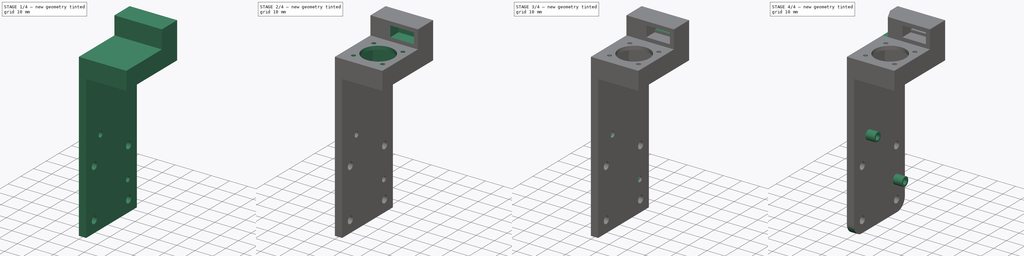
[diagram: build sequence overview — one tinted view per stage of 4, left to right]
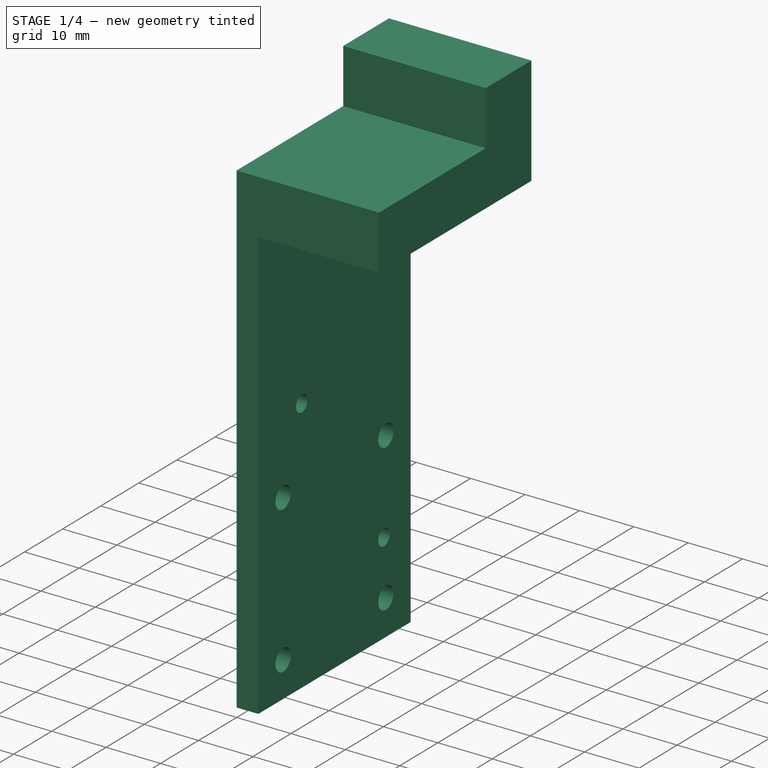
[diagram: stage 1 of 4 — iso view after this stage's code; geometry added in this stage tinted green]
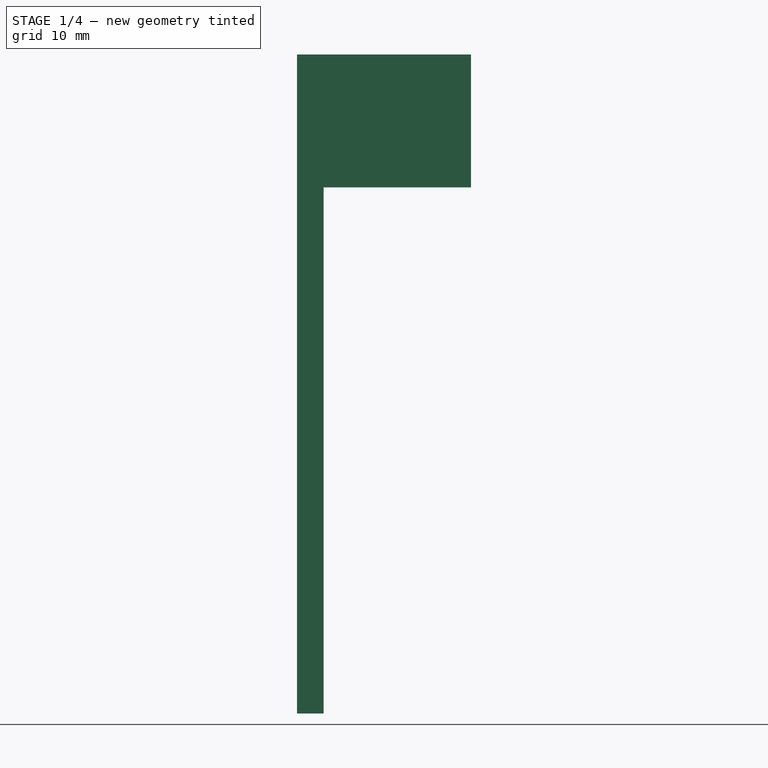
[diagram: stage 1 of 4 — front view after this stage's code; geometry added in this stage tinted green]
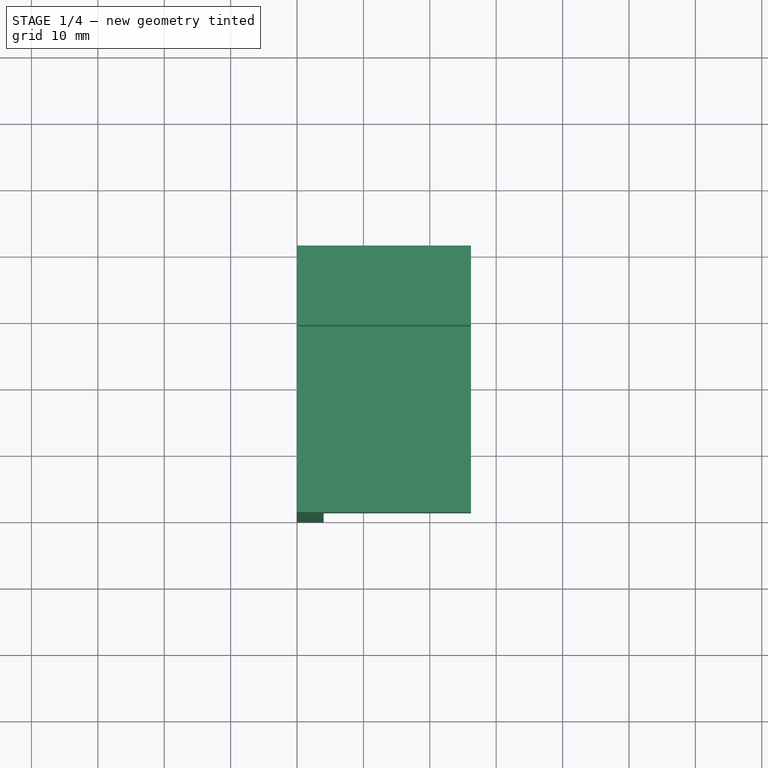
[diagram: stage 1 of 4 — top view after this stage's code; geometry added in this stage tinted green]
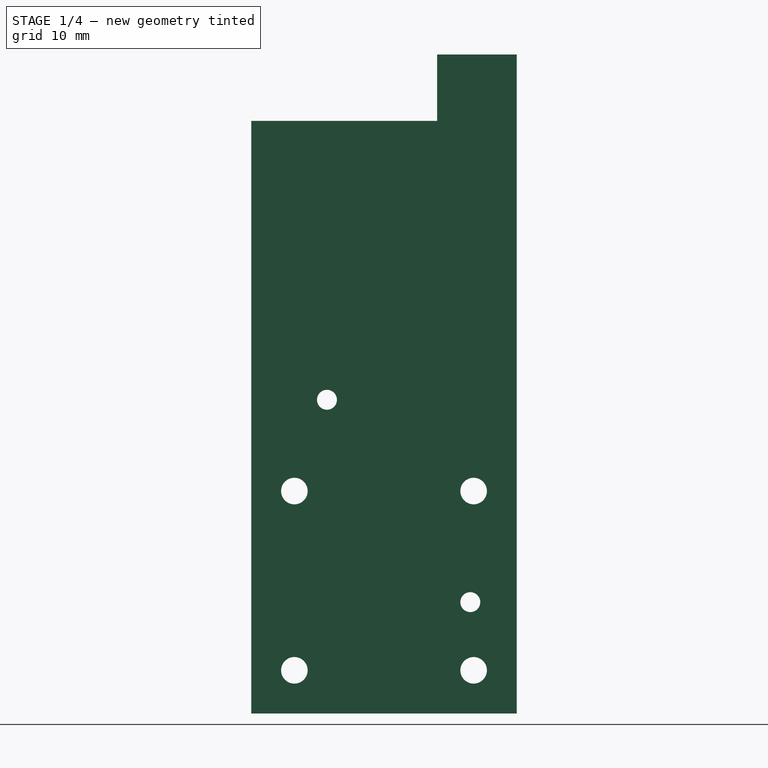
[diagram: stage 1 of 4 — right view after this stage's code; geometry added in this stage tinted green]
FCSTD DOCUMENT  (FreeCAD 0.19R23578 (Git))
Label: frame
License: All rights reserved
LicenseURL: http://en.wikipedia.org/wiki/All_rights_reserved
objects: Sketcher::SketchObject×10, PartDesign::Pocket×7, PartDesign::Pad×3, PartDesign::Fillet×1, PartDesign::Chamfer×1, PartDesign::Body×1
note: 35 computed .brp shape members not serialized (recipe doc carries the construction recipe); baked Part::Feature solids carry a one-line shape summary decoded from their .brp

FEATURE [Sketcher::SketchObject] Sketch013
  MapMode = 5
  Placement = pos=(0,0,0) rot=(0.57735,0.57735,0.57735;2.0944rad)
  Support = -> [YZ_Plane010]
  sketch-geometry (6):
    g0: LineSegment StartX=20 StartY=-89.25 StartZ=0 EndX=-20 EndY=-89.25 EndZ=0
    g1: LineSegment StartX=-20 StartY=-89.25 StartZ=0 EndX=-20 EndY=0 EndZ=0
    g2: LineSegment StartX=20 StartY=10 StartZ=0 EndX=20 EndY=-89.25 EndZ=0
    g3: LineSegment StartX=20 StartY=10 StartZ=0 EndX=8 EndY=10 EndZ=0
    g4: LineSegment StartX=8 StartY=10 StartZ=0 EndX=8 EndY=0 EndZ=0
    g5: LineSegment StartX=8 StartY=0 StartZ=0 EndX=-20 EndY=0 EndZ=0
  constraints (17):
    c: Coincident(g0,g1)
    c: Coincident(g2,g0)
    c: Vertical(g1)
    c: Vertical(g2)
    c: DistanceY(g0,g-1) = 89.25
    c: DistanceX(g0,g0) = 40
    c: Symmetric(g0,g0,g-2)
    c: Coincident(g2,g3)
    c: Horizontal(g3)
    c: Coincident(g3,g4)
    c: Vertical(g4)
    c: Coincident(g4,g5)
    c: Horizontal(g5)
    c: Coincident(g1,g5)
    c: DistanceY(g-1,g2) = 10
    c: DistanceX(g3,g3) = 12
    c: PointOnObject(g-1,g5)
FEATURE [PartDesign::Pad] Pad008
  Direction = (1,1,1)
  Length = 4
  Length2 = 100
  Placement = pos=(0,0,0) rot=(0.57735,0.57735,0.57735;2.0944rad)
  Profile = -> Sketch013
  Type = 0
FEATURE [Sketcher::SketchObject] Sketch015
  ExternalGeometry = -> [Pad008]
  MapMode = 5
  Placement = pos=(4,-9e-16,9e-16) rot=(0.57735,0.57735,0.57735;2.0944rad)
  Support = -> [Pad008]
  sketch-geometry (6):
    g0: LineSegment StartX=20 StartY=10 StartZ=0 EndX=8 EndY=10 EndZ=0
    g1: LineSegment StartX=8 StartY=10 StartZ=0 EndX=8 EndY=0 EndZ=0
    g2: LineSegment StartX=20 StartY=-10 StartZ=0 EndX=20 EndY=10 EndZ=0
    g3: LineSegment StartX=8 StartY=0 StartZ=0 EndX=-20 EndY=0 EndZ=0
    g4: LineSegment StartX=-20 StartY=0 StartZ=0 EndX=-20 EndY=-10 EndZ=0
    g5: LineSegment StartX=-20 StartY=-10 StartZ=0 EndX=20 EndY=-10 EndZ=0
  constraints (16):
    c: Coincident(g0,g1)
    c: Coincident(g2,g0)
    c: Vertical(g1)
    c: Vertical(g2)
    c: Coincident(g0,g-3)
    c: Coincident(g0,g-3)
    c: Coincident(g1,g3)
    c: Horizontal(g3)
    c: Coincident(g3,g4)
    c: Vertical(g4)
    c: Coincident(g5,g2)
    c: Horizontal(g5)
    c: Coincident(g5,g4)
    c: DistanceX(g5,g5) = 40
    c: DistanceY(g4,g4) = 10
    c: PointOnObject(g3,g-1)
FEATURE [PartDesign::Pad] Pad009
  BaseFeature = -> Pad008
  Direction = (1,1,1)
  Length = 22.2
  Length2 = 100
  Placement = pos=(0,0,0) rot=(0.57735,0.57735,0.57735;2.0944rad)
  Profile = -> Sketch015
  Type = 0
FEATURE [Sketcher::SketchObject] Sketch
  ExternalGeometry = -> [Pad009]
  MapMode = 5
  Placement = pos=(1e-16,0,0) rot=(0.57735,0.57735,-0.57735;4.18879rad)
  Support = -> [Pad009]
  sketch-geometry (6):
    g0: Circle CenterX=-13.5 CenterY=82.75 CenterZ=0 NormalX=0 NormalY=0 NormalZ=1 AngleXU=0 Radius=2
    g1: Circle CenterX=13.5 CenterY=82.75 CenterZ=0 NormalX=0 NormalY=0 NormalZ=1 AngleXU=0 Radius=2
    g2: Circle CenterX=13.5 CenterY=55.75 CenterZ=0 NormalX=0 NormalY=0 NormalZ=1 AngleXU=0 Radius=2
    g3: Circle CenterX=-13.5 CenterY=55.75 CenterZ=0 NormalX=0 NormalY=0 NormalZ=1 AngleXU=0 Radius=2
    g4: Circle CenterX=13 CenterY=72.48 CenterZ=0 NormalX=0 NormalY=0 NormalZ=1 AngleXU=0 Radius=1.5
    g5: Circle CenterX=-8.59 CenterY=42 CenterZ=0 NormalX=0 NormalY=0 NormalZ=1 AngleXU=0 Radius=1.5
  constraints (16):
    c: Symmetric(g2,g3,g-2)
    c: Symmetric(g1,g0,g-2)
    c: DistanceY(g2,g1) = 27
    c: Diameter(g0) = 4
    c: Equal(g1,g0)
    c: Equal(g0,g3)
    c: Equal(g3,g2)
    c: DistanceX(g3,g2) = 27
    c: DistanceY(g-1,g2) = 55.75
    c: DistanceX(g5,g4) = 21.59
    c: DistanceX(g-1,g4) = 13
    c: Diameter(g5) = 3
    c: Equal(g4,g5)
    c: DistanceY(g5,g4) = 30.48
    c: DistanceY(g-1,g5) = 42
    c: DistanceX(g0,g1) = 27
FEATURE [PartDesign::Pocket] Pocket
  BaseFeature = -> Pad009
  Length = 5
  Length2 = 100
  Placement = pos=(0,0,0) rot=(0.57735,0.57735,0.57735;2.0944rad)
  Profile = -> Sketch
  Type = 1
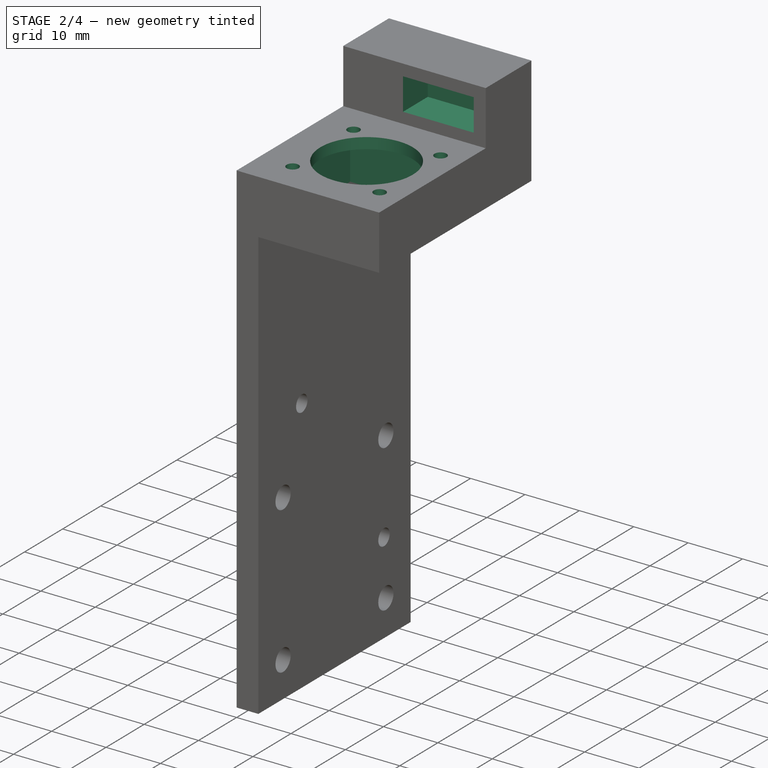
[diagram: stage 2 of 4 — iso view after this stage's code; geometry added in this stage tinted green]
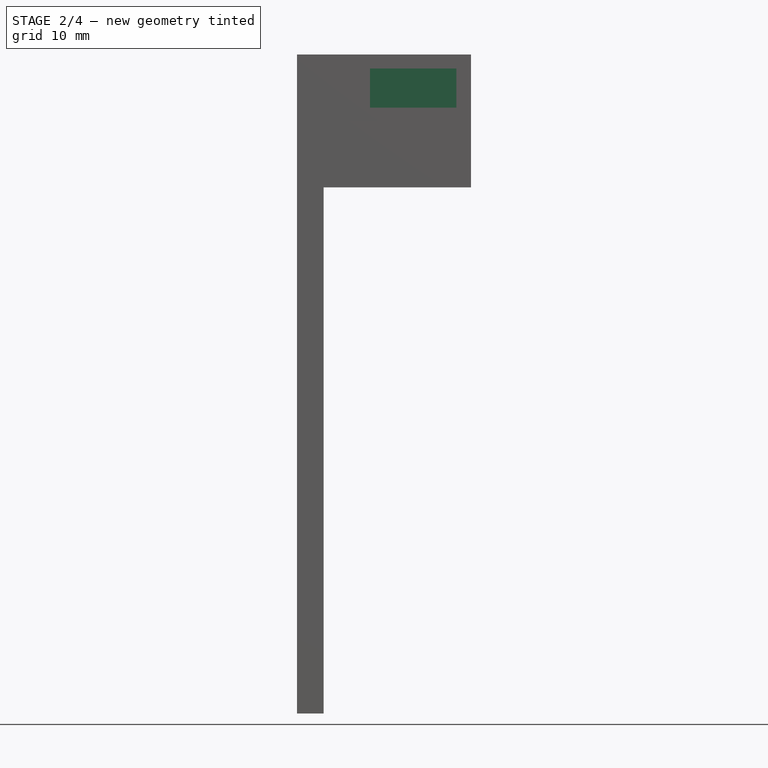
[diagram: stage 2 of 4 — front view after this stage's code; geometry added in this stage tinted green]
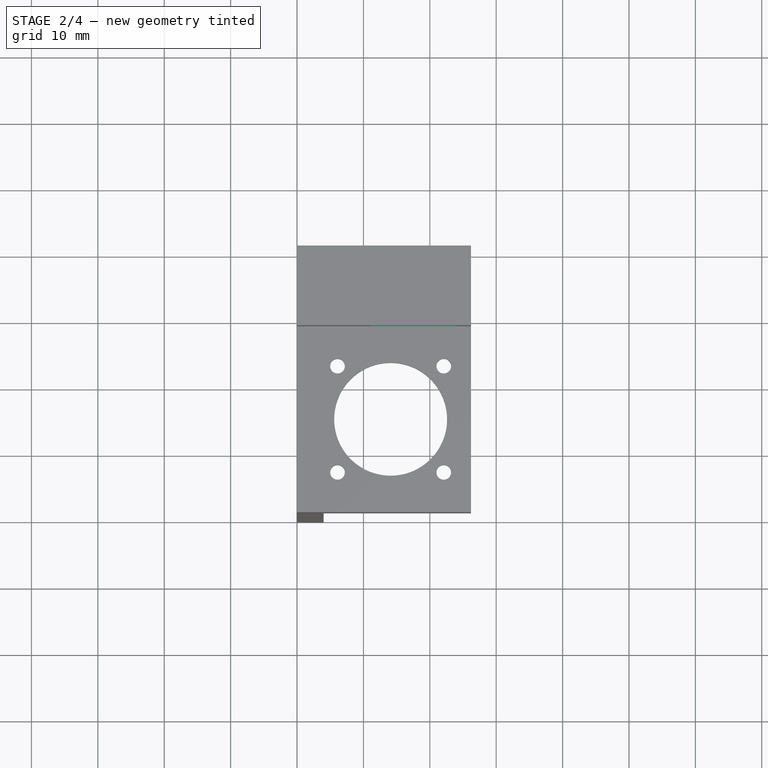
[diagram: stage 2 of 4 — top view after this stage's code; geometry added in this stage tinted green]
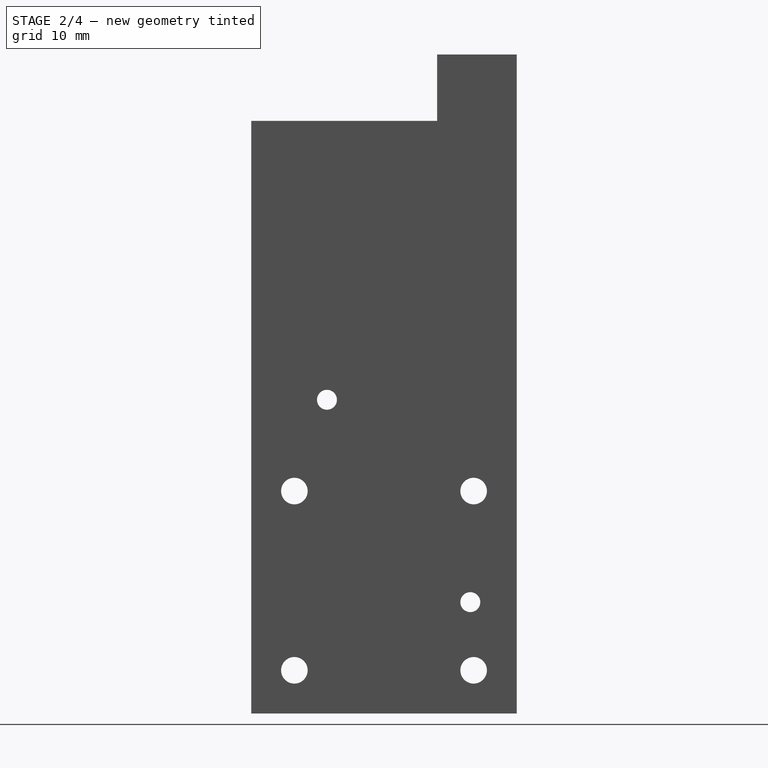
[diagram: stage 2 of 4 — right view after this stage's code; geometry added in this stage tinted green]
FEATURE [Sketcher::SketchObject] Sketch016
  MapMode = 5
  Placement = pos=(4.4e-15,-3.3e-15,-10) rot=(0.707107,0.707107,0;3.14159rad)
  Support = -> [Pocket]
  sketch-geometry (5):
    g0: LineSegment StartX=-16.1 StartY=24.2 StartZ=0 EndX=4.1 EndY=24.2 EndZ=0
    g1: LineSegment StartX=4.1 StartY=24.2 StartZ=0 EndX=4.1 EndY=4 EndZ=0
    g2: LineSegment StartX=4.1 StartY=4 StartZ=0 EndX=-16.1 EndY=4 EndZ=0
    g3: LineSegment StartX=-16.1 StartY=4 StartZ=0 EndX=-16.1 EndY=24.2 EndZ=0
    g4: GeomPoint X=-6 Y=14.1 Z=0
  constraints (14):
    c: Coincident(g0,g1)
    c: Coincident(g1,g2)
    c: Coincident(g2,g3)
    c: Coincident(g3,g0)
    c: Horizontal(g0)
    c: Horizontal(g2)
    c: Vertical(g1)
    c: Vertical(g3)
    c: DistanceX(g2,g2) = 20.2
    c: DistanceY(g1,g1) = 20.2
    c: DistanceY(g-1,g2) = 4
    c: DistanceY(g-1,g4) = 14.1
    c: DistanceX(g4,g1) = 10.1
    c: DistanceX(g4,g-1) = 6
FEATURE [PartDesign::Pocket] Pocket001
  BaseFeature = -> Pocket
  Length = 0
  Length2 = 100
  Offset = -2
  Placement = pos=(0,0,0) rot=(0.57735,0.57735,0.57735;2.0944rad)
  Profile = -> Sketch016
  Type = 3
  UpToFace = -> Pocket [Face8]
FEATURE [Sketcher::SketchObject] Sketch017
  MapMode = 5
  Placement = pos=(-4.4e-15,7.4e-15,10) rot=(0,0,-1;1.5708rad)
  Support = -> [Pocket001]
  sketch-geometry (6):
    g0: Circle CenterX=-2 CenterY=6.1 CenterZ=0 NormalX=0 NormalY=0 NormalZ=1 AngleXU=0 Radius=1.1
    g1: Circle CenterX=14 CenterY=6.1 CenterZ=0 NormalX=0 NormalY=0 NormalZ=1 AngleXU=0 Radius=1.1
    g2: Circle CenterX=14 CenterY=22.1 CenterZ=0 NormalX=0 NormalY=0 NormalZ=1 AngleXU=0 Radius=1.1
    g3: Circle CenterX=-2 CenterY=22.1 CenterZ=0 NormalX=0 NormalY=0 NormalZ=1 AngleXU=0 Radius=1.1
    g4: GeomPoint X=6 Y=14.1 Z=0
    g5: Circle CenterX=6 CenterY=14.1 CenterZ=0 NormalX=0 NormalY=0 NormalZ=1 AngleXU=0 Radius=8.5
  constraints (16):
    c: Horizontal(g3,g2)
    c: Vertical(g1,g2)
    c: Vertical(g3,g0)
    c: Horizontal(g1,g0)
    c: DistanceX(g3,g2) = 16
    c: DistanceY(g0,g3) = 16
    c: Equal(g2,g3)
    c: Equal(g3,g0)
    c: Equal(g0,g1)
    c: Diameter(g2) = 2.2
    c: DistanceY(g-1,g4) = 14.1
    c: DistanceX(g-1,g4) = 6
    c: DistanceY(g4,g3) = 8
    c: DistanceX(g3,g4) = 8
    c: Coincident(g5,g4)
    c: Diameter(g5) = 17
FEATURE [PartDesign::Pocket] Pocket002
  BaseFeature = -> Pocket001
  Length = 50
  Length2 = 100
  Placement = pos=(0,0,0) rot=(0.57735,0.57735,0.57735;2.0944rad)
  Profile = -> Sketch017
  Type = 0
FEATURE [Sketcher::SketchObject] Sketch018
  MapMode = 5
  Placement = pos=(8e-15,8,0) rot=(0.57735,0.57735,-0.57735;2.0944rad)
  Support = -> [Pocket002]
  sketch-geometry (4):
    g0: LineSegment StartX=-7.9 StartY=24 StartZ=0 EndX=-2 EndY=24 EndZ=0
    g1: LineSegment StartX=-2 StartY=24 StartZ=0 EndX=-2 EndY=11 EndZ=0
    g2: LineSegment StartX=-2 StartY=11 StartZ=0 EndX=-7.9 EndY=11 EndZ=0
    g3: LineSegment StartX=-7.9 StartY=11 StartZ=0 EndX=-7.9 EndY=24 EndZ=0
  constraints (12):
    c: Coincident(g0,g1)
    c: Coincident(g1,g2)
    c: Coincident(g2,g3)
    c: Coincident(g3,g0)
    c: Horizontal(g0)
    c: Horizontal(g2)
    c: Vertical(g1)
    c: Vertical(g3)
    c: DistanceY(g1,g1) = 13
    c: DistanceX(g0,g0) = 5.9
    c: DistanceY(g-1,g2) = 11
    c: DistanceX(g0,g-1) = 2
FEATURE [PartDesign::Pocket] Pocket003
  BaseFeature = -> Pocket002
  Length = 6.5
  Length2 = 100
  Placement = pos=(0,0,0) rot=(0.57735,0.57735,0.57735;2.0944rad)
  Profile = -> Sketch018
  Type = 0
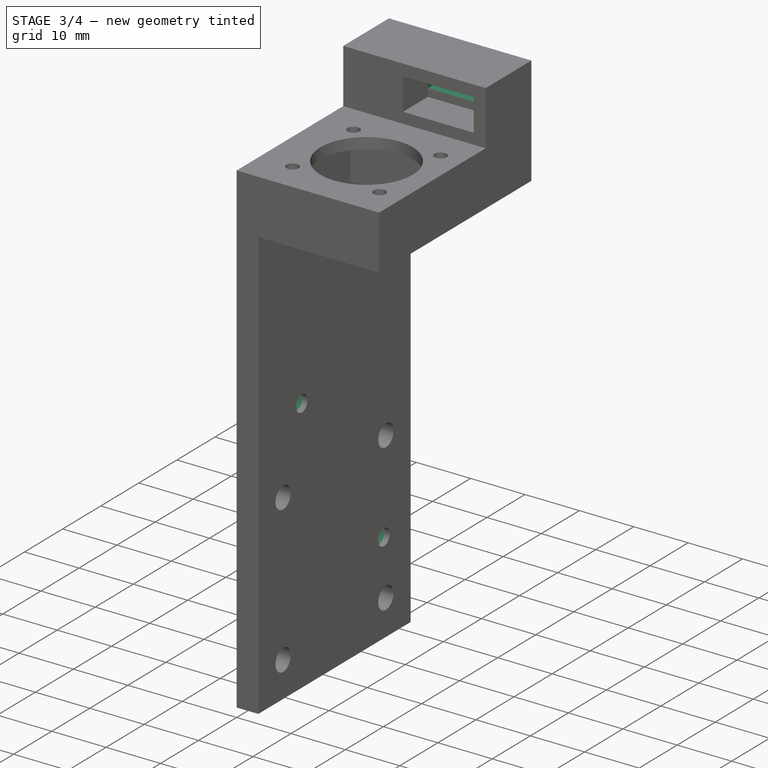
[diagram: stage 3 of 4 — iso view after this stage's code; geometry added in this stage tinted green]
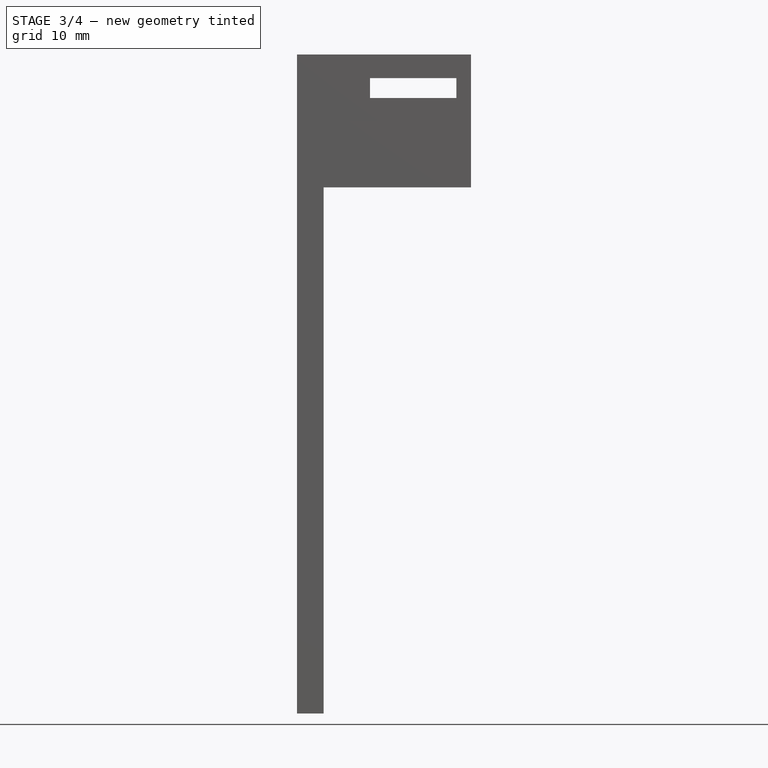
[diagram: stage 3 of 4 — front view after this stage's code; geometry added in this stage tinted green]
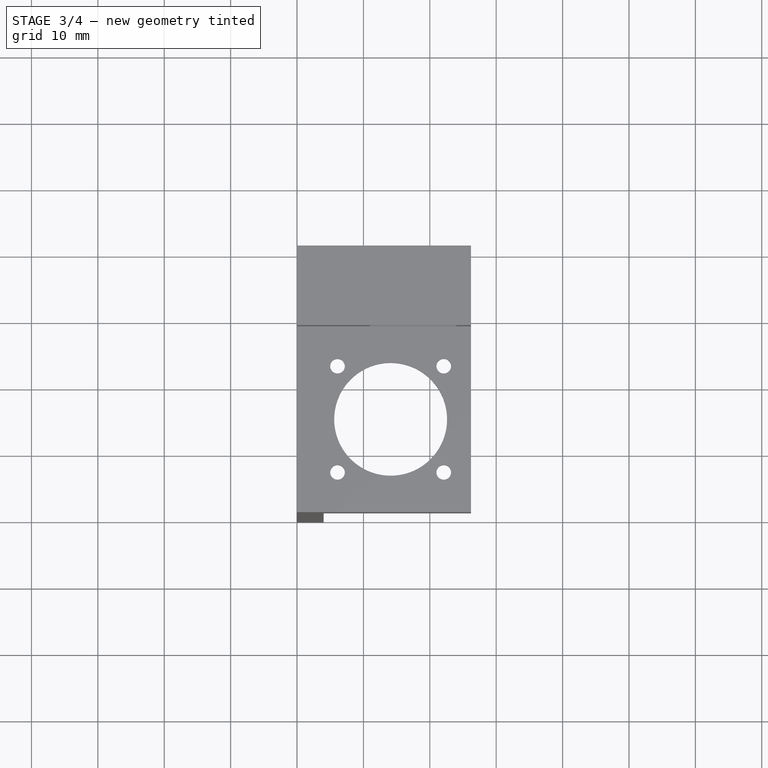
[diagram: stage 3 of 4 — top view after this stage's code; geometry added in this stage tinted green]
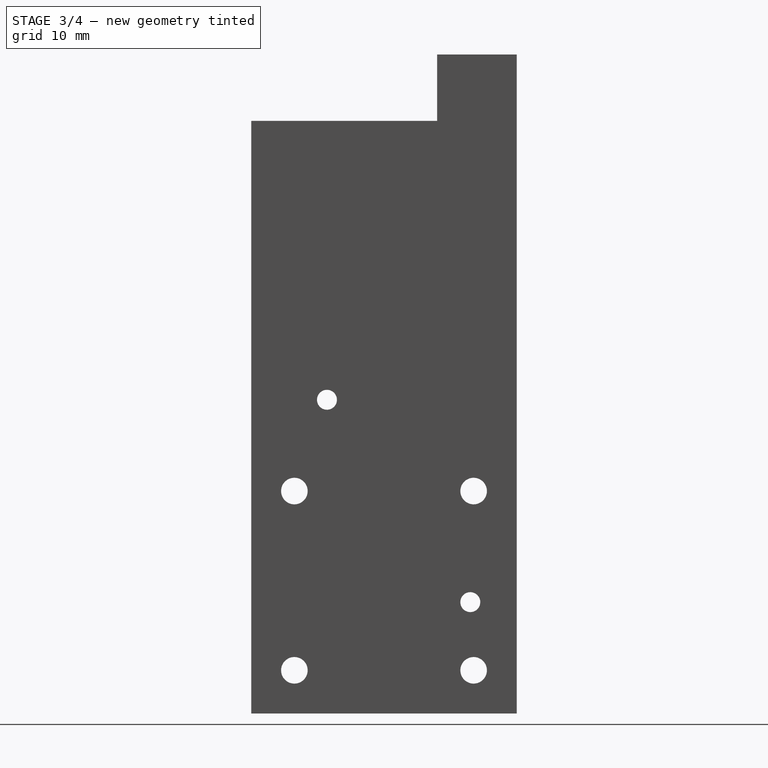
[diagram: stage 3 of 4 — right view after this stage's code; geometry added in this stage tinted green]
FEATURE [Sketcher::SketchObject] Sketch019
  MapMode = 5
  Placement = pos=(1.75e-14,14.5,-2.2e-15) rot=(-0.57735,-0.57735,0.57735;4.18879rad)
  Support = -> [Pocket003]
  sketch-geometry (4):
    g0: LineSegment StartX=-6.45 StartY=24 StartZ=0 EndX=-3.45 EndY=24 EndZ=0
    g1: LineSegment StartX=-3.45 StartY=24 StartZ=0 EndX=-3.45 EndY=11 EndZ=0
    g2: LineSegment StartX=-3.45 StartY=11 StartZ=0 EndX=-6.45 EndY=11 EndZ=0
    g3: LineSegment StartX=-6.45 StartY=11 StartZ=0 EndX=-6.45 EndY=24 EndZ=0
  constraints (12):
    c: Coincident(g0,g1)
    c: Coincident(g1,g2)
    c: Coincident(g2,g3)
    c: Coincident(g3,g0)
    c: Horizontal(g0)
    c: Horizontal(g2)
    c: Vertical(g1)
    c: Vertical(g3)
    c: DistanceX(g0,g0) = 3
    c: DistanceY(g1,g1) = 13
    c: DistanceX(g1,g-1) = 3.45
    c: DistanceY(g-1,g1) = 11
FEATURE [PartDesign::Pocket] Pocket004
  BaseFeature = -> Pocket003
  Length = 5
  Length2 = 100
  Placement = pos=(0,0,0) rot=(0.57735,0.57735,0.57735;2.0944rad)
  Profile = -> Sketch019
  Type = 1
FEATURE [Sketcher::SketchObject] Sketch020
  ExternalGeometry = -> [Pocket004]
  MapMode = 5
  Placement = pos=(-4e-16,8e-16,3.45) rot=(0,0,-1;1.5708rad)
  Support = -> [Pocket004]
  sketch-geometry (4):
    g0: LineSegment StartX=-19 StartY=24 StartZ=0 EndX=-16 EndY=24 EndZ=0
    g1: LineSegment StartX=-16 StartY=24 StartZ=0 EndX=-16 EndY=11 EndZ=0
    g2: LineSegment StartX=-16 StartY=11 StartZ=0 EndX=-19 EndY=11 EndZ=0
    g3: LineSegment StartX=-19 StartY=11 StartZ=0 EndX=-19 EndY=24 EndZ=0
  constraints (12):
    c: Coincident(g0,g1)
    c: Coincident(g1,g2)
    c: Coincident(g2,g3)
    c: Coincident(g3,g0)
    c: Horizontal(g0)
    c: Horizontal(g2)
    c: Vertical(g1)
    c: Vertical(g3)
    c: PointOnObject(g-3,g0)
    c: DistanceX(g-3,g0) = 1
    c: PointOnObject(g-3,g2)
    c: DistanceX(g0,g0) = 3
FEATURE [PartDesign::Pocket] Pocket005
  BaseFeature = -> Pocket004
  Length = 40
  Length2 = 100
  Placement = pos=(0,0,0) rot=(0.57735,0.57735,0.57735;2.0944rad)
  Profile = -> Sketch020
  Type = 0
FEATURE [Sketcher::SketchObject] Sketch021
  ExternalGeometry = -> [Pocket005]
  MapMode = 5
  Placement = pos=(-2.63e-14,0,0) rot=(0.57735,0.57735,-0.57735;4.18879rad)
  Support = -> [Pocket005]
  sketch-geometry (2):
    g0: Circle CenterX=-8.59 CenterY=42 CenterZ=0 NormalX=0 NormalY=0 NormalZ=1 AngleXU=0 Radius=5
    g1: Circle CenterX=13 CenterY=72.48 CenterZ=0 NormalX=0 NormalY=0 NormalZ=1 AngleXU=0 Radius=5
  constraints (4):
    c: Diameter(g0) = 10
    c: Diameter(g1) = 10
    c: Coincident(g0,g-3)
    c: Coincident(g1,g-4)
FEATURE [PartDesign::Pocket] Pocket006
  BaseFeature = -> Pocket005
  Length = 3
  Length2 = 100
  Placement = pos=(0,0,0) rot=(0.57735,0.57735,0.57735;2.0944rad)
  Profile = -> Sketch021
  Type = 0
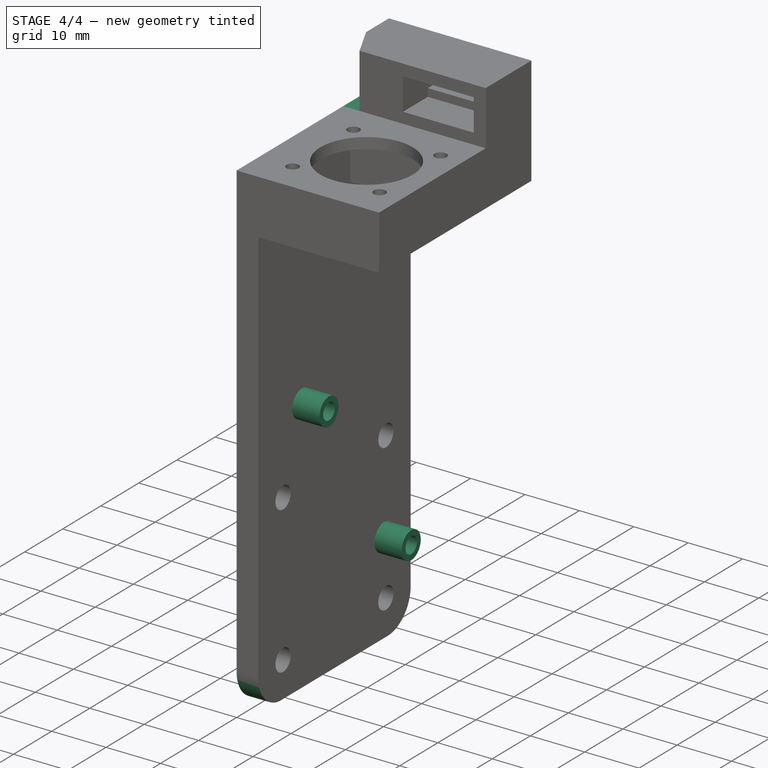
[diagram: stage 4 of 4 — iso view after this stage's code; geometry added in this stage tinted green]
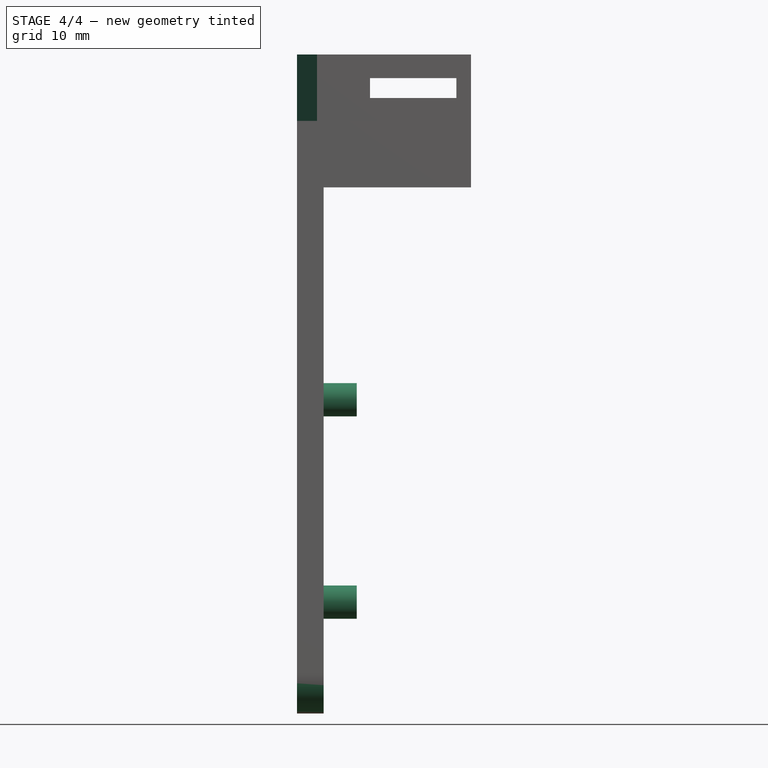
[diagram: stage 4 of 4 — front view after this stage's code; geometry added in this stage tinted green]
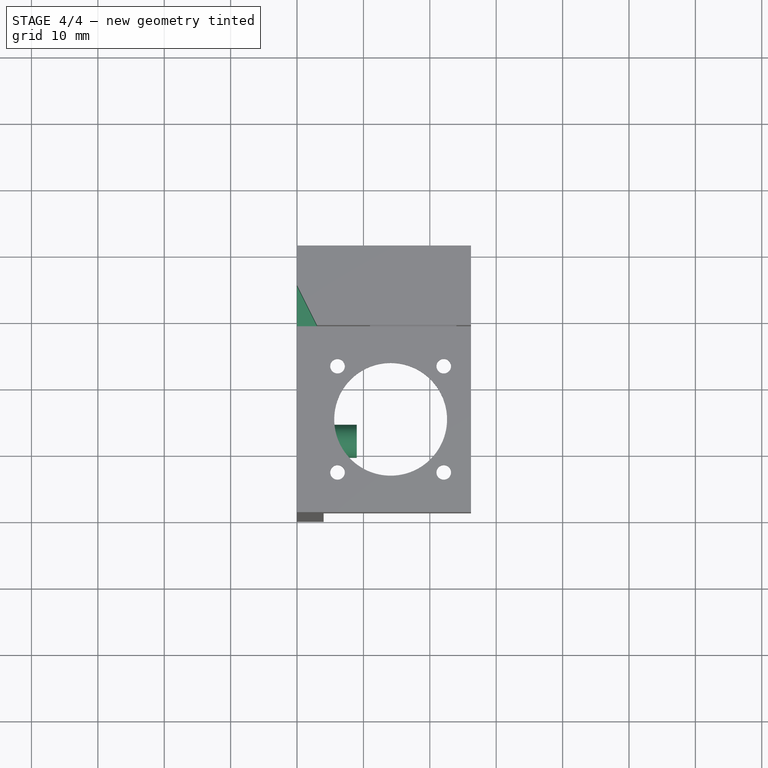
[diagram: stage 4 of 4 — top view after this stage's code; geometry added in this stage tinted green]
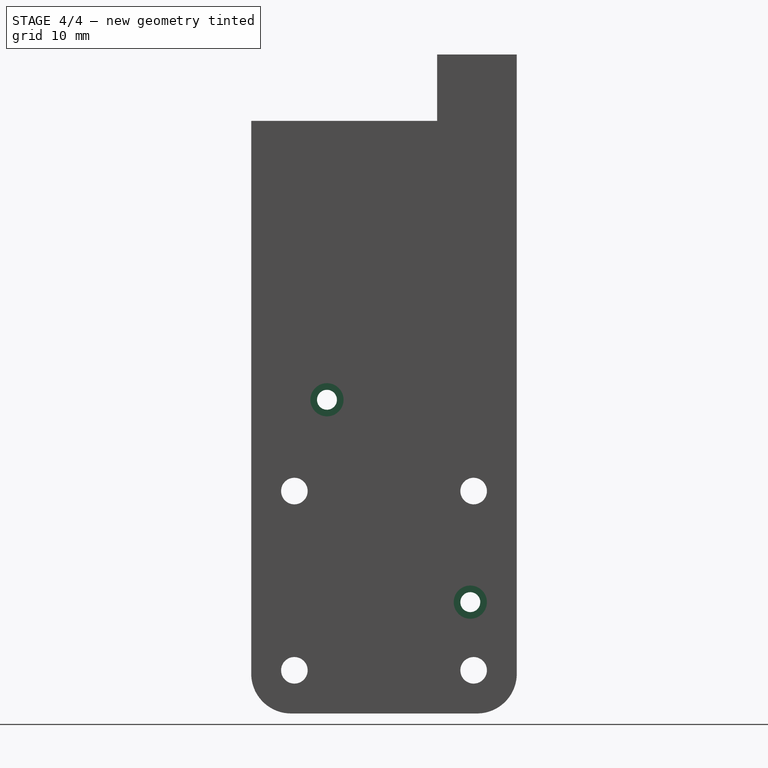
[diagram: stage 4 of 4 — right view after this stage's code; geometry added in this stage tinted green]
FEATURE [PartDesign::Fillet] Fillet
  Base = -> Pocket006 [Edge2,Edge1]
  BaseFeature = -> Pocket006
  Placement = pos=(0,0,0) rot=(0.57735,0.57735,0.57735;2.0944rad)
  Radius = 6
  SupportTransform = false
FEATURE [Sketcher::SketchObject] Sketch022
  AttachmentOffset = pos=(0,0,4) rot=(0,0,1;0rad)
  ExternalGeometry = -> [Pocket001]
  MapMode = 5
  Placement = pos=(4,-9e-16,9e-16) rot=(0.57735,0.57735,0.57735;2.0944rad)
  Support = -> [YZ_Plane010]
  sketch-geometry (4):
    g0: Circle CenterX=-8.59 CenterY=-42 CenterZ=0 NormalX=0 NormalY=0 NormalZ=1 AngleXU=0 Radius=2.5
    g1: Circle CenterX=-8.59 CenterY=-42 CenterZ=0 NormalX=0 NormalY=0 NormalZ=1 AngleXU=0 Radius=1.5
    g2: Circle CenterX=13 CenterY=-72.48 CenterZ=0 NormalX=0 NormalY=0 NormalZ=1 AngleXU=0 Radius=1.5
    g3: Circle CenterX=13 CenterY=-72.48 CenterZ=0 NormalX=0 NormalY=0 NormalZ=1 AngleXU=0 Radius=2.5
  constraints (8):
    c: Coincident(g0,g-3)
    c: Coincident(g1,g0)
    c: Coincident(g2,g-4)
    c: Coincident(g3,g2)
    c: Diameter(g2) = 3
    c: Diameter(g3) = 5
    c: Diameter(g1) = 3
    c: Diameter(g0) = 5
FEATURE [PartDesign::Pad] Pad
  BaseFeature = -> Fillet
  Direction = (1,1,1)
  Length = 5
  Length2 = 100
  Placement = pos=(0,0,0) rot=(0.57735,0.57735,0.57735;2.0944rad)
  Profile = -> Sketch022
  Type = 0
FEATURE [PartDesign::Chamfer] Chamfer
  Angle = 45
  Base = -> Pad [Edge11]
  BaseFeature = -> Pad
  ChamferType = 1
  FlipDirection = false
  Placement = pos=(0,0,0) rot=(0.57735,0.57735,0.57735;2.0944rad)
  Size = 6
  Size2 = 3
  SupportTransform = false
FEATURE [PartDesign::Body] Body003
  Group = -> [Sketch013,Pad008,Sketch015,Pad009,Sketch,Pocket,Sketch016,Pocket001,Sketch017,Pocket002,Sketch018,Pocket003,Sketch019,Pocket004,Sketch020,Pocket005,Sketch021,Pocket006,Fillet,Sketch022,Pad,Chamfer]
  Origin = -> Origin010
  Tip = -> Chamfer
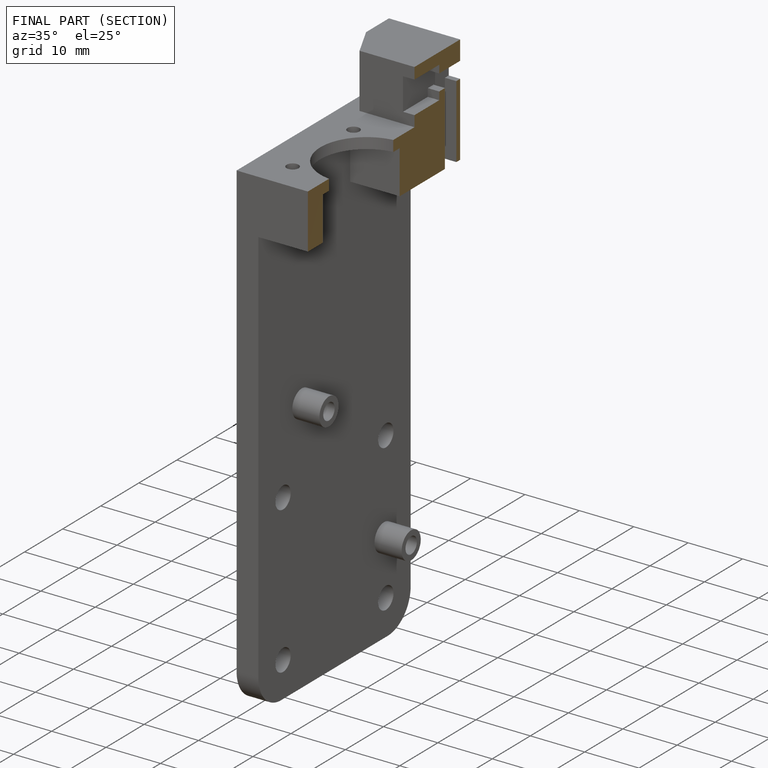
[diagram: finished part — half-section view (interior)]
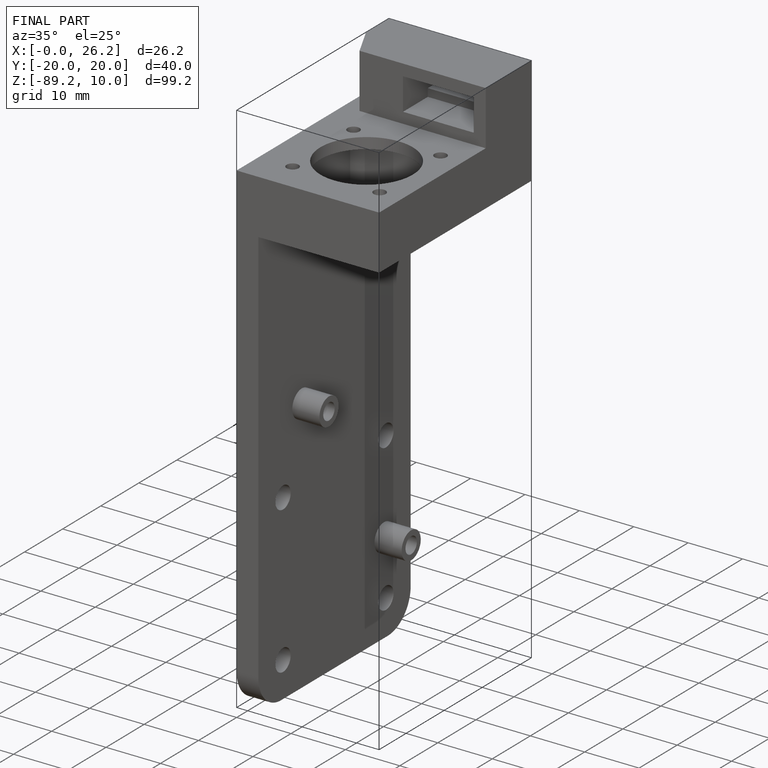
[diagram: finished part — iso view with bounding-box wireframe]
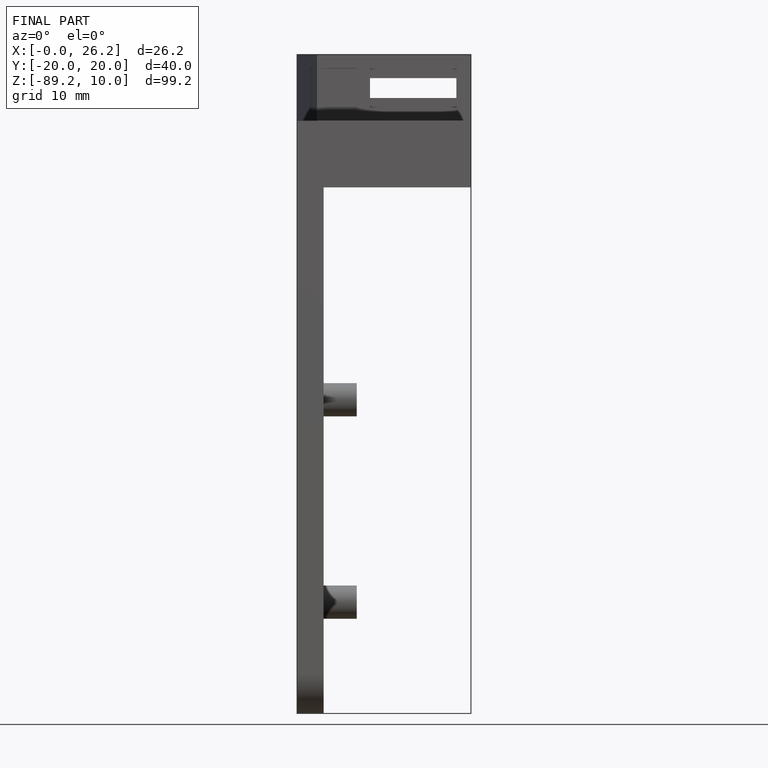
[diagram: finished part — front view with bounding-box wireframe]
